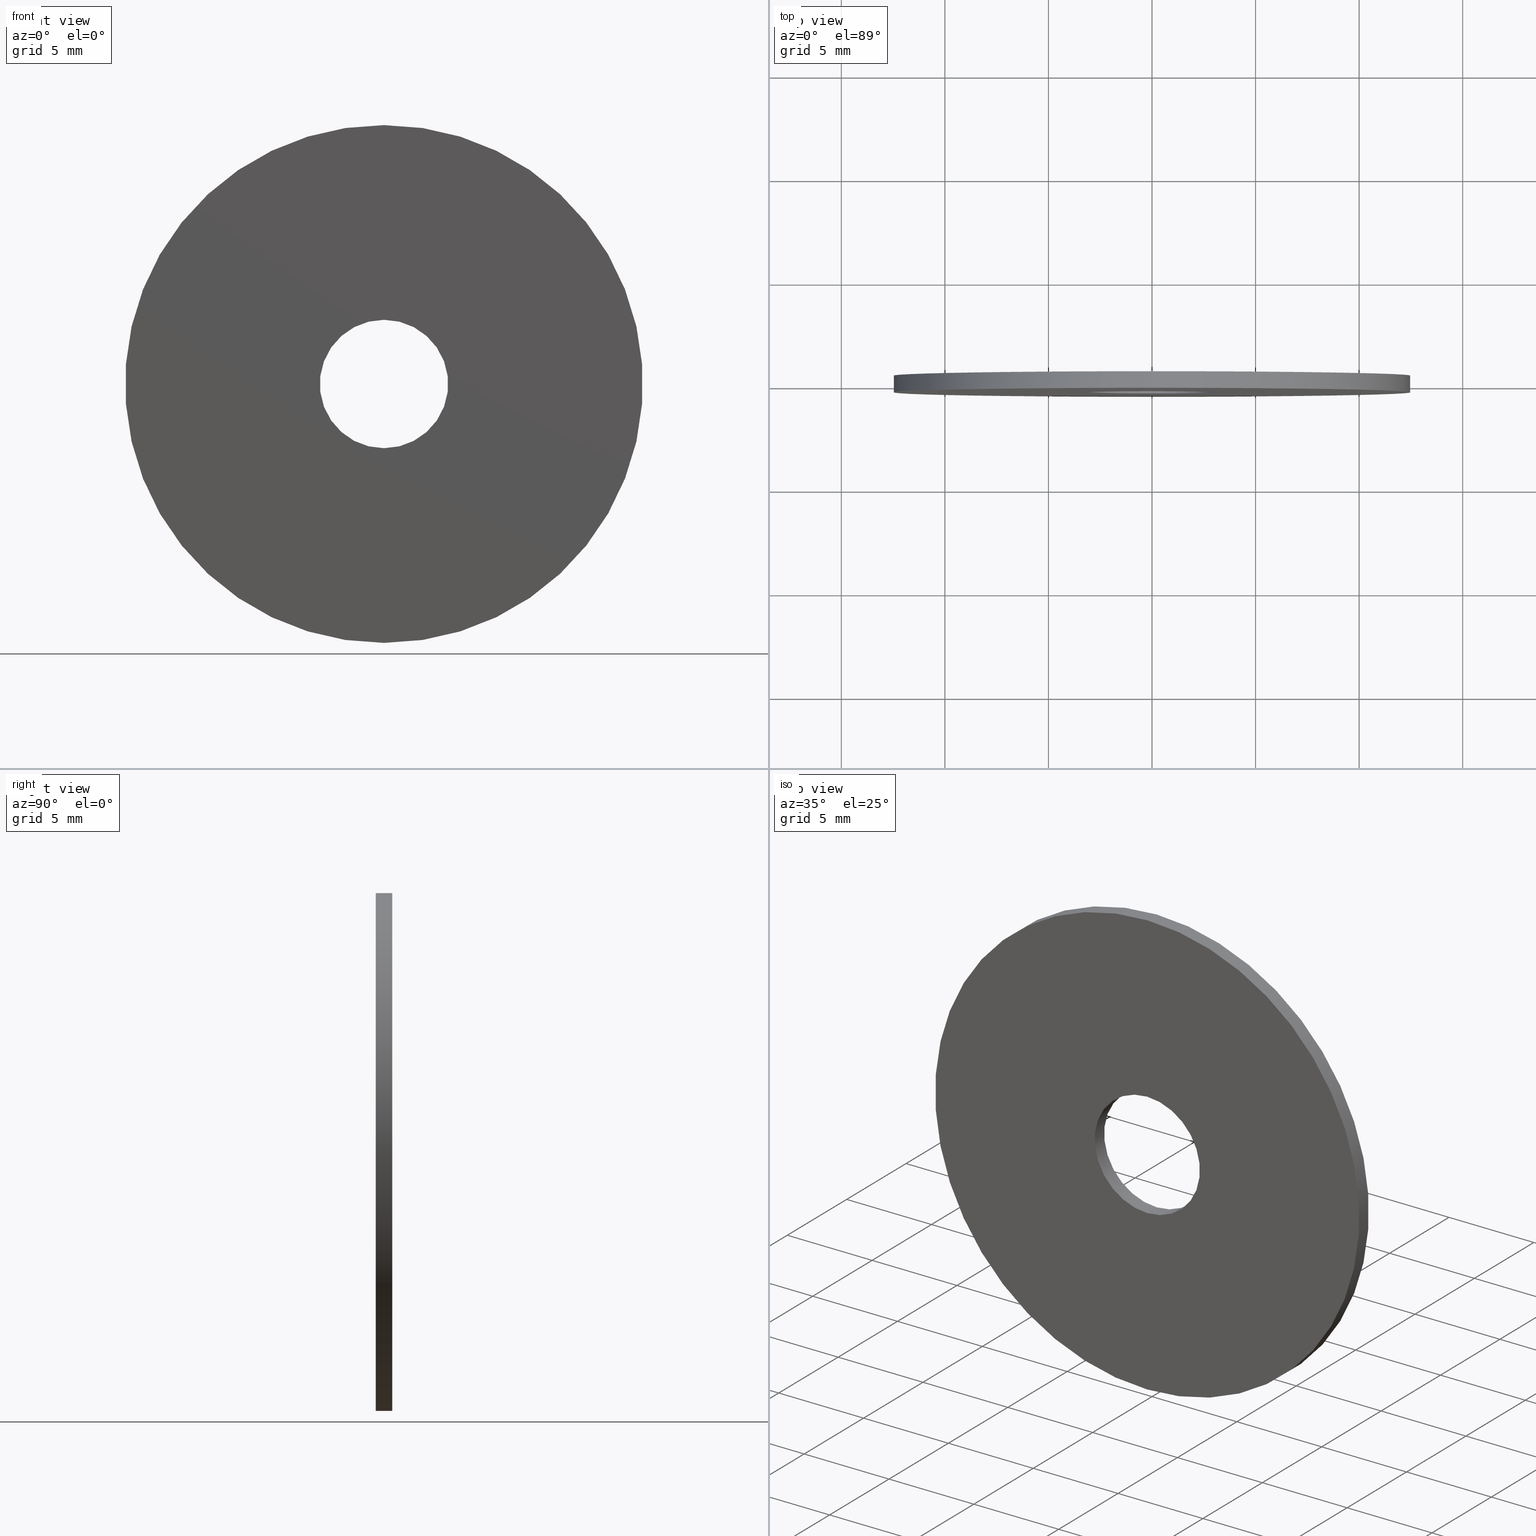
[diagram: canonical four-view strip — front | top / right | iso, engineering-drawing reading convention]
A machine part, canonical four-view strip (front | top / right | iso — engineering-drawing reading convention). The complete STEP part file that produces these views, byte-faithful:
ISO-10303-21;
HEADER;
FILE_DESCRIPTION (( 'STEP AP203' ),
    '1' );
FILE_NAME ('1.4.2.135-ZGH-25-DK0.8.STEP',
    '2024-04-06T05:14:46',
    ( '' ),
    ( '' ),
    'SwSTEP 2.0',
    'SolidWorks 2021',
    '' );
FILE_SCHEMA (( 'CONFIG_CONTROL_DESIGN' ));
ENDSEC;

DATA;
#1 = AXIS2_PLACEMENT_3D ( 'NONE', #58, #137, #60 ) ;
#2 = DIRECTION ( 'NONE',  ( -0.000000000000000000, 1.000000000000000000, -0.000000000000000000 ) ) ;
#3 = DIRECTION ( 'NONE',  ( 0.000000000000000000, 1.000000000000000000, 0.000000000000000000 ) ) ;
#4 = CARTESIAN_POINT ( 'NONE',  ( 0.000000000000000000, -0.4000000000000000222, 0.000000000000000000 ) ) ;
#5 = DIRECTION ( 'NONE',  ( 0.000000000000000000, 0.000000000000000000, 1.000000000000000000 ) ) ;
#6 = CARTESIAN_POINT ( 'NONE',  ( 0.000000000000000000, -0.4000000000000000222, -12.50000000000000000 ) ) ;
#7 = CC_DESIGN_APPROVAL ( #39, ( #55 ) ) ;
#8 = DIRECTION ( 'NONE',  ( 0.000000000000000000, 0.000000000000000000, 1.000000000000000000 ) ) ;
#9 = CLOSED_SHELL ( 'NONE', ( #75, #118, #85, #173, #59, #24 ) ) ;
#10 = EDGE_LOOP ( 'NONE', ( #88, #221 ) ) ;
#11 = CALENDAR_DATE ( 2024, 6, 4 ) ;
#12 = ORIENTED_EDGE ( 'NONE', *, *, #141, .F. ) ;
#13 = DATE_AND_TIME ( #72, #100 ) ;
#14 = DIRECTION ( 'NONE',  ( 0.000000000000000000, 0.000000000000000000, 1.000000000000000000 ) ) ;
#15 = PRODUCT_DEFINITION_SHAPE ( 'NONE', 'NONE',  #101 ) ;
#16 = CARTESIAN_POINT ( 'NONE',  ( 1.530808498934191521E-15, -0.4000000000000000222, 12.50000000000000000 ) ) ;
#17 = DIRECTION ( 'NONE',  ( -0.000000000000000000, -1.000000000000000000, -0.000000000000000000 ) ) ;
#18 = AXIS2_PLACEMENT_3D ( 'NONE', #87, #179, #121 ) ;
#19 = EDGE_LOOP ( 'NONE', ( #96, #222 ) ) ;
#20 = ORIENTED_EDGE ( 'NONE', *, *, #247, .F. ) ;
#21 = CC_DESIGN_APPROVAL ( #107, ( #101 ) ) ;
#22 = PERSON_AND_ORGANIZATION ( #186, #211 ) ;
#23 = CARTESIAN_POINT ( 'NONE',  ( 0.000000000000000000, 0.4000000000000000222, 0.000000000000000000 ) ) ;
#24 = ADVANCED_FACE ( 'NONE', ( #191 ), #147, .F. ) ;
#25 = CARTESIAN_POINT ( 'NONE',  ( 0.000000000000000000, -0.4000000000000000222, 3.100000000000000089 ) ) ;
#26 = VECTOR ( 'NONE', #53, 1000.000000000000000 ) ;
#27 = CALENDAR_DATE ( 2024, 6, 4 ) ;
#28 = ORIENTED_EDGE ( 'NONE', *, *, #210, .F. ) ;
#29 = PRODUCT_RELATED_PRODUCT_CATEGORY ( 'detail', '', ( #36 ) ) ;
#30 = PERSON_AND_ORGANIZATION ( #186, #211 ) ;
#31 = DATE_TIME_ROLE ( 'classification_date' ) ;
#32 = CYLINDRICAL_SURFACE ( 'NONE', #214, 3.100000000000000089 ) ;
#33 = APPROVAL_ROLE ( '' ) ;
#34 = CIRCLE ( 'NONE', #176, 12.50000000000000000 ) ;
#35 = ORIENTED_EDGE ( 'NONE', *, *, #97, .F. ) ;
#36 = PRODUCT ( '1.4.2.135-ZGH-25-DK0.8', '1.4.2.135-ZGH-25-DK0.8', '', ( #139 ) ) ;
#37 = COORDINATED_UNIVERSAL_TIME_OFFSET ( 8, 0, .AHEAD. ) ;
#38 = DIRECTION ( 'NONE',  ( 0.000000000000000000, 0.000000000000000000, 1.000000000000000000 ) ) ;
#39 = APPROVAL ( #169, 'δָ��' ) ;
#40 = VERTEX_POINT ( 'NONE', #16 ) ;
#41 = DIRECTION ( 'NONE',  ( -0.000000000000000000, 1.000000000000000000, -0.000000000000000000 ) ) ;
#42 = CARTESIAN_POINT ( 'NONE',  ( 0.000000000000000000, 0.4000000000000000222, 3.100000000000000089 ) ) ;
#43 = CIRCLE ( 'NONE', #79, 3.100000000000000089 ) ;
#44 = CC_DESIGN_DATE_AND_TIME_ASSIGNMENT ( #13, #128, ( #101 ) ) ;
#45 = CARTESIAN_POINT ( 'NONE',  ( 0.000000000000000000, 0.4000000000000000222, -12.50000000000000000 ) ) ;
#46 = DIRECTION ( 'NONE',  ( 0.000000000000000000, 0.000000000000000000, -1.000000000000000000 ) ) ;
#47 = APPROVAL_ROLE ( '' ) ;
#48 = SECURITY_CLASSIFICATION_LEVEL ( 'unclassified' ) ;
#49 = EDGE_LOOP ( 'NONE', ( #35, #28, #188, #113 ) ) ;
#50 = PERSON_AND_ORGANIZATION ( #186, #211 ) ;
#51 = ORIENTED_EDGE ( 'NONE', *, *, #200, .F. ) ;
#52 = PERSON_AND_ORGANIZATION ( #186, #211 ) ;
#53 = DIRECTION ( 'NONE',  ( -0.000000000000000000, 1.000000000000000000, -0.000000000000000000 ) ) ;
#54 = CARTESIAN_POINT ( 'NONE',  ( 0.000000000000000000, -0.4000000000000000222, 0.000000000000000000 ) ) ;
#55 = SECURITY_CLASSIFICATION ( '', '', #48 ) ;
#56 = EDGE_CURVE ( 'NONE', #203, #241, #43, .T. ) ;
#57 =( GEOMETRIC_REPRESENTATION_CONTEXT ( 3 ) GLOBAL_UNCERTAINTY_ASSIGNED_CONTEXT ( ( #73 ) ) GLOBAL_UNIT_ASSIGNED_CONTEXT ( ( #161, #217, #215 ) ) REPRESENTATION_CONTEXT ( 'NONE', 'WORKASPACE' ) );
#58 = CARTESIAN_POINT ( 'NONE',  ( 0.000000000000000000, -0.4000000000000000222, 0.000000000000000000 ) ) ;
#59 = ADVANCED_FACE ( 'NONE', ( #154, #172 ), #213, .F. ) ;
#60 = DIRECTION ( 'NONE',  ( 0.000000000000000000, -0.000000000000000000, 1.000000000000000000 ) ) ;
#61 = CARTESIAN_POINT ( 'NONE',  ( 0.000000000000000000, -0.4000000000000000222, 3.100000000000000089 ) ) ;
#62 = CIRCLE ( 'NONE', #202, 12.50000000000000000 ) ;
#63 = DIRECTION ( 'NONE',  ( 1.000000000000000000, 0.000000000000000000, 0.000000000000000000 ) ) ;
#64 = CC_DESIGN_SECURITY_CLASSIFICATION ( #55, ( #91 ) ) ;
#65 = FACE_OUTER_BOUND ( 'NONE', #78, .T. ) ;
#66 = DIRECTION ( 'NONE',  ( 0.000000000000000000, 1.000000000000000000, 0.000000000000000000 ) ) ;
#67 = EDGE_LOOP ( 'NONE', ( #243, #193 ) ) ;
#68 = DATE_AND_TIME ( #27, #209 ) ;
#69 = EDGE_CURVE ( 'NONE', #40, #177, #34, .T. ) ;
#70 = APPLICATION_CONTEXT ( 'configuration controlled 3d designs of mechanical parts and assemblies' ) ;
#71 = CARTESIAN_POINT ( 'NONE',  ( 0.000000000000000000, -0.4000000000000000222, 0.000000000000000000 ) ) ;
#72 = CALENDAR_DATE ( 2024, 6, 4 ) ;
#73 = UNCERTAINTY_MEASURE_WITH_UNIT (LENGTH_MEASURE( 1.000000000000000082E-05 ), #161, 'distance_accuracy_value', 'NONE');
#74 = DIRECTION ( 'NONE',  ( 0.000000000000000000, 0.000000000000000000, -1.000000000000000000 ) ) ;
#75 = ADVANCED_FACE ( 'NONE', ( #119 ), #32, .F. ) ;
#76 = PERSON_AND_ORGANIZATION_ROLE ( 'creator' ) ;
#77 = VERTEX_POINT ( 'NONE', #245 ) ;
#78 = EDGE_LOOP ( 'NONE', ( #212, #189 ) ) ;
#79 = AXIS2_PLACEMENT_3D ( 'NONE', #223, #80, #178 ) ;
#80 = DIRECTION ( 'NONE',  ( 0.000000000000000000, 1.000000000000000000, 0.000000000000000000 ) ) ;
#81 = CARTESIAN_POINT ( 'NONE',  ( 1.530808498934191521E-15, 0.4000000000000000222, 12.50000000000000000 ) ) ;
#82 = CARTESIAN_POINT ( 'NONE',  ( 3.796405077356794918E-16, 0.4000000000000000222, -3.100000000000000089 ) ) ;
#83 = AXIS2_PLACEMENT_3D ( 'NONE', #180, #5, #63 ) ;
#84 = DIRECTION ( 'NONE',  ( 0.000000000000000000, 1.000000000000000000, 0.000000000000000000 ) ) ;
#85 = ADVANCED_FACE ( 'NONE', ( #194 ), #129, .T. ) ;
#86 = CARTESIAN_POINT ( 'NONE',  ( 0.000000000000000000, 0.4000000000000000222, 0.000000000000000000 ) ) ;
#87 = CARTESIAN_POINT ( 'NONE',  ( 0.000000000000000000, -0.4000000000000000222, 0.000000000000000000 ) ) ;
#88 = ORIENTED_EDGE ( 'NONE', *, *, #56, .F. ) ;
#89 = PERSON_AND_ORGANIZATION_ROLE ( 'creator' ) ;
#90 = COORDINATED_UNIVERSAL_TIME_OFFSET ( 8, 0, .AHEAD. ) ;
#91 = PRODUCT_DEFINITION_FORMATION_WITH_SPECIFIED_SOURCE ( '�κ�', '', #36, .NOT_KNOWN. ) ;
#92 = APPROVAL_DATE_TIME ( #68, #39 ) ;
#93 = CARTESIAN_POINT ( 'NONE',  ( 0.000000000000000000, 0.4000000000000000222, 0.000000000000000000 ) ) ;
#94 = ORIENTED_EDGE ( 'NONE', *, *, #160, .F. ) ;
#95 = APPROVAL_PERSON_ORGANIZATION ( #30, #39, #33 ) ;
#96 = ORIENTED_EDGE ( 'NONE', *, *, #210, .T. ) ;
#97 = EDGE_CURVE ( 'NONE', #77, #241, #149, .T. ) ;
#98 = AXIS2_PLACEMENT_3D ( 'NONE', #86, #158, #236 ) ;
#99 = ORIENTED_EDGE ( 'NONE', *, *, #219, .F. ) ;
#100 = LOCAL_TIME ( 13, 14, 46.00000000000000000, #205 ) ;
#101 = PRODUCT_DEFINITION ( 'δ֪', '', #91, #225 ) ;
#102 = LINE ( 'NONE', #81, #157 ) ;
#103 = CC_DESIGN_PERSON_AND_ORGANIZATION_ASSIGNMENT ( #162, #76, ( #91 ) ) ;
#104 = CIRCLE ( 'NONE', #116, 12.50000000000000000 ) ;
#105 = PERSON_AND_ORGANIZATION_ROLE ( 'design_owner' ) ;
#106 = CARTESIAN_POINT ( 'NONE',  ( 0.000000000000000000, 0.4000000000000000222, 0.000000000000000000 ) ) ;
#107 = APPROVAL ( #224, 'δָ��' ) ;
#108 = CARTESIAN_POINT ( 'NONE',  ( 0.000000000000000000, -0.4000000000000000222, 0.000000000000000000 ) ) ;
#109 = CIRCLE ( 'NONE', #120, 12.50000000000000000 ) ;
#110 = ORIENTED_EDGE ( 'NONE', *, *, #141, .T. ) ;
#111 = ORIENTED_EDGE ( 'NONE', *, *, #69, .T. ) ;
#112 = PERSON_AND_ORGANIZATION ( #186, #211 ) ;
#113 = ORIENTED_EDGE ( 'NONE', *, *, #56, .T. ) ;
#114 = CYLINDRICAL_SURFACE ( 'NONE', #249, 12.50000000000000000 ) ;
#115 = EDGE_CURVE ( 'NONE', #136, #126, #109, .T. ) ;
#116 = AXIS2_PLACEMENT_3D ( 'NONE', #108, #3, #159 ) ;
#117 = ORIENTED_EDGE ( 'NONE', *, *, #155, .T. ) ;
#118 = ADVANCED_FACE ( 'NONE', ( #208 ), #114, .T. ) ;
#119 = FACE_OUTER_BOUND ( 'NONE', #204, .T. ) ;
#120 = AXIS2_PLACEMENT_3D ( 'NONE', #151, #206, #133 ) ;
#121 = DIRECTION ( 'NONE',  ( 0.000000000000000000, 0.000000000000000000, 1.000000000000000000 ) ) ;
#122 = PLANE ( 'NONE',  #98 ) ;
#123 = LINE ( 'NONE', #25, #127 ) ;
#124 = CARTESIAN_POINT ( 'NONE',  ( 0.000000000000000000, 0.4000000000000000222, -12.50000000000000000 ) ) ;
#125 = APPROVAL_DATE_TIME ( #143, #216 ) ;
#126 = VERTEX_POINT ( 'NONE', #197 ) ;
#127 = VECTOR ( 'NONE', #234, 1000.000000000000000 ) ;
#128 = DATE_TIME_ROLE ( 'creation_date' ) ;
#129 = CYLINDRICAL_SURFACE ( 'NONE', #152, 12.50000000000000000 ) ;
#130 = DATE_AND_TIME ( #11, #134 ) ;
#131 = ORIENTED_EDGE ( 'NONE', *, *, #247, .T. ) ;
#132 = DATE_AND_TIME ( #164, #166 ) ;
#133 = DIRECTION ( 'NONE',  ( 0.000000000000000000, 0.000000000000000000, 1.000000000000000000 ) ) ;
#134 = LOCAL_TIME ( 13, 14, 46.00000000000000000, #37 ) ;
#135 = CC_DESIGN_PERSON_AND_ORGANIZATION_ASSIGNMENT ( #246, #240, ( #91 ) ) ;
#136 = VERTEX_POINT ( 'NONE', #45 ) ;
#137 = DIRECTION ( 'NONE',  ( 0.000000000000000000, 1.000000000000000000, 0.000000000000000000 ) ) ;
#138 = VECTOR ( 'NONE', #184, 1000.000000000000000 ) ;
#139 = MECHANICAL_CONTEXT ( 'NONE', #70, 'mechanical' ) ;
#140 = APPLICATION_PROTOCOL_DEFINITION ( 'international standard', 'config_control_design', 1994, #70 ) ;
#141 = EDGE_CURVE ( 'NONE', #136, #177, #142, .T. ) ;
#142 = LINE ( 'NONE', #124, #138 ) ;
#143 = DATE_AND_TIME ( #244, #229 ) ;
#144 = ORIENTED_EDGE ( 'NONE', *, *, #115, .F. ) ;
#145 = APPROVAL_ROLE ( '' ) ;
#146 = ORIENTED_EDGE ( 'NONE', *, *, #231, .T. ) ;
#147 = CYLINDRICAL_SURFACE ( 'NONE', #190, 3.100000000000000089 ) ;
#148 = COORDINATED_UNIVERSAL_TIME_OFFSET ( 8, 0, .AHEAD. ) ;
#149 = LINE ( 'NONE', #226, #26 ) ;
#150 = CC_DESIGN_PERSON_AND_ORGANIZATION_ASSIGNMENT ( #171, #89, ( #101 ) ) ;
#151 = CARTESIAN_POINT ( 'NONE',  ( 0.000000000000000000, 0.4000000000000000222, 0.000000000000000000 ) ) ;
#152 = AXIS2_PLACEMENT_3D ( 'NONE', #93, #170, #74 ) ;
#153 = VERTEX_POINT ( 'NONE', #61 ) ;
#154 = FACE_BOUND ( 'NONE', #19, .T. ) ;
#155 = EDGE_CURVE ( 'NONE', #241, #203, #238, .T. ) ;
#156 = DIRECTION ( 'NONE',  ( 0.000000000000000000, 0.000000000000000000, 1.000000000000000000 ) ) ;
#157 = VECTOR ( 'NONE', #237, 1000.000000000000000 ) ;
#158 = DIRECTION ( 'NONE',  ( 0.000000000000000000, 1.000000000000000000, 0.000000000000000000 ) ) ;
#159 = DIRECTION ( 'NONE',  ( 0.000000000000000000, 0.000000000000000000, 1.000000000000000000 ) ) ;
#160 = EDGE_CURVE ( 'NONE', #126, #136, #62, .T. ) ;
#161 =( LENGTH_UNIT ( ) NAMED_UNIT ( * ) SI_UNIT ( .MILLI., .METRE. ) );
#162 = PERSON_AND_ORGANIZATION ( #186, #211 ) ;
#163 = EDGE_LOOP ( 'NONE', ( #20, #144, #110, #146 ) ) ;
#164 = CALENDAR_DATE ( 2024, 6, 4 ) ;
#165 = CC_DESIGN_DATE_AND_TIME_ASSIGNMENT ( #132, #31, ( #55 ) ) ;
#166 = LOCAL_TIME ( 13, 14, 46.00000000000000000, #167 ) ;
#167 = COORDINATED_UNIVERSAL_TIME_OFFSET ( 8, 0, .AHEAD. ) ;
#168 = CIRCLE ( 'NONE', #18, 3.100000000000000089 ) ;
#169 = APPROVAL_STATUS ( 'not_yet_approved' ) ;
#170 = DIRECTION ( 'NONE',  ( -0.000000000000000000, -1.000000000000000000, -0.000000000000000000 ) ) ;
#171 = PERSON_AND_ORGANIZATION ( #186, #211 ) ;
#172 = FACE_OUTER_BOUND ( 'NONE', #67, .T. ) ;
#173 = ADVANCED_FACE ( 'NONE', ( #218, #65 ), #122, .T. ) ;
#174 = DIRECTION ( 'NONE',  ( 0.000000000000000000, 1.000000000000000000, 0.000000000000000000 ) ) ;
#175 = AXIS2_PLACEMENT_3D ( 'NONE', #23, #239, #199 ) ;
#176 = AXIS2_PLACEMENT_3D ( 'NONE', #71, #174, #14 ) ;
#177 = VERTEX_POINT ( 'NONE', #6 ) ;
#178 = DIRECTION ( 'NONE',  ( 0.000000000000000000, 0.000000000000000000, 1.000000000000000000 ) ) ;
#179 = DIRECTION ( 'NONE',  ( 0.000000000000000000, 1.000000000000000000, 0.000000000000000000 ) ) ;
#180 = CARTESIAN_POINT ( 'NONE',  ( 0.000000000000000000, 0.000000000000000000, 0.000000000000000000 ) ) ;
#181 = AXIS2_PLACEMENT_3D ( 'NONE', #4, #84, #8 ) ;
#182 = APPLICATION_PROTOCOL_DEFINITION ( 'international standard', 'config_control_design', 1994, #227 ) ;
#183 = CC_DESIGN_PERSON_AND_ORGANIZATION_ASSIGNMENT ( #22, #105, ( #36 ) ) ;
#184 = DIRECTION ( 'NONE',  ( -0.000000000000000000, -1.000000000000000000, -0.000000000000000000 ) ) ;
#185 = SHAPE_DEFINITION_REPRESENTATION ( #15, #233 ) ;
#186 = PERSON ( 'δָ��', 'δָ��', 'δָ��', ('δָ��'), ('δָ��'), ('δָ��') ) ;
#187 = APPROVAL_DATE_TIME ( #130, #107 ) ;
#188 = ORIENTED_EDGE ( 'NONE', *, *, #200, .T. ) ;
#189 = ORIENTED_EDGE ( 'NONE', *, *, #160, .T. ) ;
#190 = AXIS2_PLACEMENT_3D ( 'NONE', #230, #2, #232 ) ;
#191 = FACE_OUTER_BOUND ( 'NONE', #49, .T. ) ;
#192 = CARTESIAN_POINT ( 'NONE',  ( 0.000000000000000000, 0.4000000000000000222, 0.000000000000000000 ) ) ;
#193 = ORIENTED_EDGE ( 'NONE', *, *, #69, .F. ) ;
#194 = FACE_OUTER_BOUND ( 'NONE', #163, .T. ) ;
#195 = CC_DESIGN_PERSON_AND_ORGANIZATION_ASSIGNMENT ( #50, #201, ( #55 ) ) ;
#196 = APPROVAL_PERSON_ORGANIZATION ( #112, #216, #47 ) ;
#197 = CARTESIAN_POINT ( 'NONE',  ( 1.530808498934191521E-15, 0.4000000000000000222, 12.50000000000000000 ) ) ;
#198 = MANIFOLD_SOLID_BREP ( '�г�-����3', #9 ) ;
#199 = DIRECTION ( 'NONE',  ( 0.000000000000000000, 0.000000000000000000, 1.000000000000000000 ) ) ;
#200 = EDGE_CURVE ( 'NONE', #153, #203, #123, .T. ) ;
#201 = PERSON_AND_ORGANIZATION_ROLE ( 'classification_officer' ) ;
#202 = AXIS2_PLACEMENT_3D ( 'NONE', #106, #66, #156 ) ;
#203 = VERTEX_POINT ( 'NONE', #42 ) ;
#204 = EDGE_LOOP ( 'NONE', ( #99, #248, #117, #51 ) ) ;
#205 = COORDINATED_UNIVERSAL_TIME_OFFSET ( 8, 0, .AHEAD. ) ;
#206 = DIRECTION ( 'NONE',  ( 0.000000000000000000, 1.000000000000000000, 0.000000000000000000 ) ) ;
#207 = APPROVAL_STATUS ( 'not_yet_approved' ) ;
#208 = FACE_OUTER_BOUND ( 'NONE', #228, .T. ) ;
#209 = LOCAL_TIME ( 13, 14, 46.00000000000000000, #90 ) ;
#210 = EDGE_CURVE ( 'NONE', #153, #77, #235, .T. ) ;
#211 = ORGANIZATION ( 'δָ��', 'δָ��', '' ) ;
#212 = ORIENTED_EDGE ( 'NONE', *, *, #115, .T. ) ;
#213 = PLANE ( 'NONE',  #1 ) ;
#214 = AXIS2_PLACEMENT_3D ( 'NONE', #54, #41, #38 ) ;
#215 =( NAMED_UNIT ( * ) SI_UNIT ( $, .STERADIAN. ) SOLID_ANGLE_UNIT ( ) );
#216 = APPROVAL ( #207, 'δָ��' ) ;
#217 =( NAMED_UNIT ( * ) PLANE_ANGLE_UNIT ( ) SI_UNIT ( $, .RADIAN. ) );
#218 = FACE_BOUND ( 'NONE', #10, .T. ) ;
#219 = EDGE_CURVE ( 'NONE', #77, #153, #168, .T. ) ;
#220 = CC_DESIGN_APPROVAL ( #216, ( #91 ) ) ;
#221 = ORIENTED_EDGE ( 'NONE', *, *, #155, .F. ) ;
#222 = ORIENTED_EDGE ( 'NONE', *, *, #219, .T. ) ;
#223 = CARTESIAN_POINT ( 'NONE',  ( 0.000000000000000000, 0.4000000000000000222, 0.000000000000000000 ) ) ;
#224 = APPROVAL_STATUS ( 'not_yet_approved' ) ;
#225 = DESIGN_CONTEXT ( 'detailed design', #227, 'design' ) ;
#226 = CARTESIAN_POINT ( 'NONE',  ( 3.796405077356794918E-16, -0.4000000000000000222, -3.100000000000000089 ) ) ;
#227 = APPLICATION_CONTEXT ( 'configuration controlled 3d designs of mechanical parts and assemblies' ) ;
#228 = EDGE_LOOP ( 'NONE', ( #94, #131, #111, #12 ) ) ;
#229 = LOCAL_TIME ( 13, 14, 46.00000000000000000, #148 ) ;
#230 = CARTESIAN_POINT ( 'NONE',  ( 0.000000000000000000, -0.4000000000000000222, 0.000000000000000000 ) ) ;
#231 = EDGE_CURVE ( 'NONE', #177, #40, #104, .T. ) ;
#232 = DIRECTION ( 'NONE',  ( 0.000000000000000000, 0.000000000000000000, 1.000000000000000000 ) ) ;
#233 = ADVANCED_BREP_SHAPE_REPRESENTATION ( '1.4.2.135-ZGH-25-DK0.8', ( #198, #83 ), #57 ) ;
#234 = DIRECTION ( 'NONE',  ( -0.000000000000000000, 1.000000000000000000, -0.000000000000000000 ) ) ;
#235 = CIRCLE ( 'NONE', #181, 3.100000000000000089 ) ;
#236 = DIRECTION ( 'NONE',  ( 0.000000000000000000, -0.000000000000000000, 1.000000000000000000 ) ) ;
#237 = DIRECTION ( 'NONE',  ( -0.000000000000000000, -1.000000000000000000, -0.000000000000000000 ) ) ;
#238 = CIRCLE ( 'NONE', #175, 3.100000000000000089 ) ;
#239 = DIRECTION ( 'NONE',  ( 0.000000000000000000, 1.000000000000000000, 0.000000000000000000 ) ) ;
#240 = PERSON_AND_ORGANIZATION_ROLE ( 'design_supplier' ) ;
#241 = VERTEX_POINT ( 'NONE', #82 ) ;
#242 = APPROVAL_PERSON_ORGANIZATION ( #52, #107, #145 ) ;
#243 = ORIENTED_EDGE ( 'NONE', *, *, #231, .F. ) ;
#244 = CALENDAR_DATE ( 2024, 6, 4 ) ;
#245 = CARTESIAN_POINT ( 'NONE',  ( 3.796405077356794918E-16, -0.4000000000000000222, -3.100000000000000089 ) ) ;
#246 = PERSON_AND_ORGANIZATION ( #186, #211 ) ;
#247 = EDGE_CURVE ( 'NONE', #126, #40, #102, .T. ) ;
#248 = ORIENTED_EDGE ( 'NONE', *, *, #97, .T. ) ;
#249 = AXIS2_PLACEMENT_3D ( 'NONE', #192, #17, #46 ) ;
ENDSEC;
END-ISO-10303-21;
